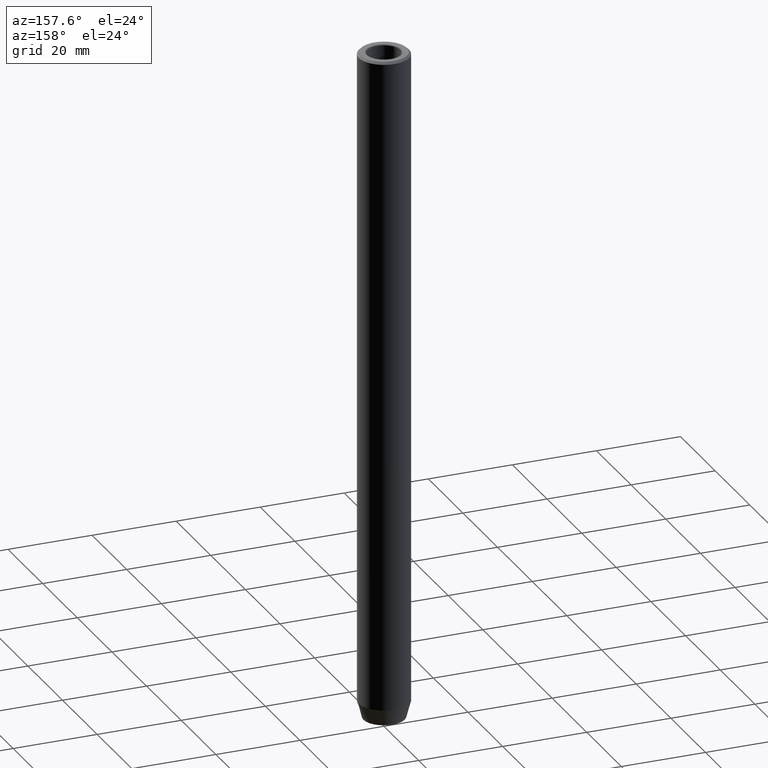
[diagram: clean part render]
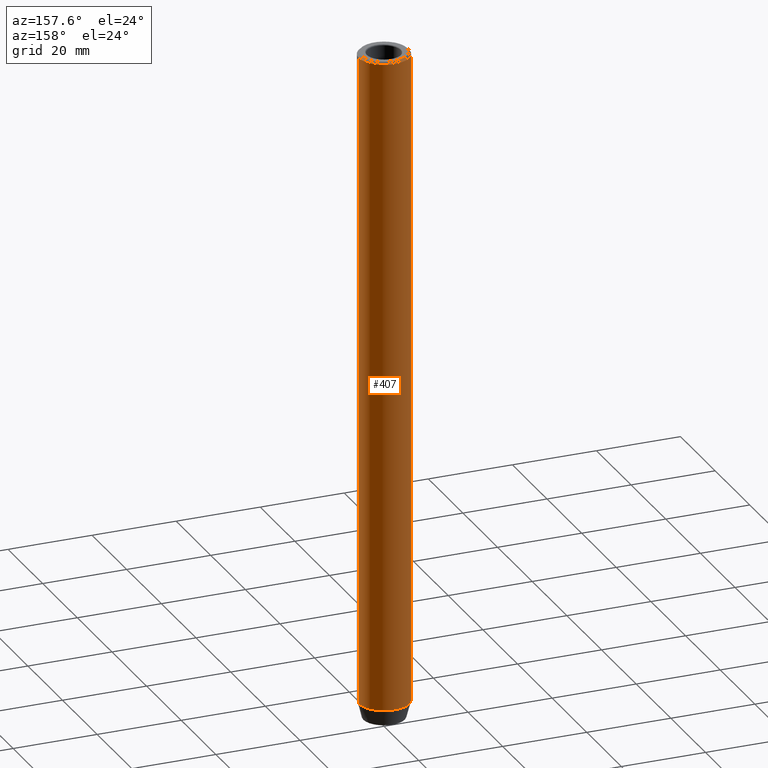
[diagram: same view with one face highlighted and labeled with its STEP entity id]
A machine part, auxiliary view. The second image highlights one B-rep face of the part: STEP entity #407.
In plain terms, the highlighted cylindrical surface (edge-blend (fillet) strip) has radius 6 mm, axis along (-0, -0, 1).
Its self-contained STEP definition (entity closure, byte-faithful):
#35 = DIRECTION ( 'NONE',  ( 1.000000000000000000, 0.000000000000000000, 0.000000000000000000 ) ) ;
#40 = LINE ( 'NONE', #582, #280 ) ;
#43 = DIRECTION ( 'NONE',  ( -0.000000000000000000, -0.000000000000000000, 1.000000000000000000 ) ) ;
#68 = CIRCLE ( 'NONE', #515, 6.000000000000000000 ) ;
#69 = CARTESIAN_POINT ( 'NONE',  ( 0.000000000000000000, 0.000000000000000000, -156.0000000000000000 ) ) ;
#98 = CARTESIAN_POINT ( 'NONE',  ( -6.000000000000000000, 7.347880794884119736E-16, -0.4999999999999891753 ) ) ;
#114 = EDGE_CURVE ( 'NONE', #222, #389, #553, .T. ) ;
#169 = AXIS2_PLACEMENT_3D ( 'NONE', #69, #624, #170 ) ;
#170 = DIRECTION ( 'NONE',  ( 1.000000000000000000, 0.000000000000000000, 0.000000000000000000 ) ) ;
#175 = VERTEX_POINT ( 'NONE', #557 ) ;
#187 = CYLINDRICAL_SURFACE ( 'NONE', #290, 6.000000000000000000 ) ;
#188 = EDGE_LOOP ( 'NONE', ( #390, #513, #274, #543 ) ) ;
#202 = CARTESIAN_POINT ( 'NONE',  ( 6.000000000000000000, 0.000000000000000000, -0.4999999999999891753 ) ) ;
#214 = CARTESIAN_POINT ( 'NONE',  ( -6.000000000000000000, 7.347880794884119736E-16, -156.0000000000000000 ) ) ;
#222 = VERTEX_POINT ( 'NONE', #214 ) ;
#248 = DIRECTION ( 'NONE',  ( 1.000000000000000000, 0.000000000000000000, 0.000000000000000000 ) ) ;
#268 = VECTOR ( 'NONE', #602, 1000.000000000000000 ) ;
#274 = ORIENTED_EDGE ( 'NONE', *, *, #581, .T. ) ;
#280 = VECTOR ( 'NONE', #43, 1000.000000000000000 ) ;
#282 = DIRECTION ( 'NONE',  ( -0.000000000000000000, -0.000000000000000000, 1.000000000000000000 ) ) ;
#285 = EDGE_CURVE ( 'NONE', #175, #222, #465, .T. ) ;
#286 = FACE_OUTER_BOUND ( 'NONE', #188, .T. ) ;
#290 = AXIS2_PLACEMENT_3D ( 'NONE', #481, #282, #35 ) ;
#389 = VERTEX_POINT ( 'NONE', #98 ) ;
#390 = ORIENTED_EDGE ( 'NONE', *, *, #285, .T. ) ;
#400 = CARTESIAN_POINT ( 'NONE',  ( 0.000000000000000000, 0.000000000000000000, -0.4999999999999891753 ) ) ;
#407 = ADVANCED_FACE ( 'NONE', ( #286 ), #187, .T. ) ;
#447 = CARTESIAN_POINT ( 'NONE',  ( -6.000000000000000000, 7.347880794884119736E-16, 0.000000000000000000 ) ) ;
#464 = EDGE_CURVE ( 'NONE', #175, #566, #40, .T. ) ;
#465 = CIRCLE ( 'NONE', #169, 6.000000000000000000 ) ;
#481 = CARTESIAN_POINT ( 'NONE',  ( 0.000000000000000000, 0.000000000000000000, 0.000000000000000000 ) ) ;
#513 = ORIENTED_EDGE ( 'NONE', *, *, #114, .T. ) ;
#515 = AXIS2_PLACEMENT_3D ( 'NONE', #400, #599, #248 ) ;
#543 = ORIENTED_EDGE ( 'NONE', *, *, #464, .F. ) ;
#553 = LINE ( 'NONE', #447, #268 ) ;
#557 = CARTESIAN_POINT ( 'NONE',  ( 6.000000000000000000, 0.000000000000000000, -156.0000000000000000 ) ) ;
#566 = VERTEX_POINT ( 'NONE', #202 ) ;
#581 = EDGE_CURVE ( 'NONE', #389, #566, #68, .T. ) ;
#582 = CARTESIAN_POINT ( 'NONE',  ( 6.000000000000000000, 0.000000000000000000, 0.000000000000000000 ) ) ;
#599 = DIRECTION ( 'NONE',  ( 0.000000000000000000, 0.000000000000000000, -1.000000000000000000 ) ) ;
#602 = DIRECTION ( 'NONE',  ( -0.000000000000000000, -0.000000000000000000, 1.000000000000000000 ) ) ;
#624 = DIRECTION ( 'NONE',  ( -0.000000000000000000, -0.000000000000000000, 1.000000000000000000 ) ) ;